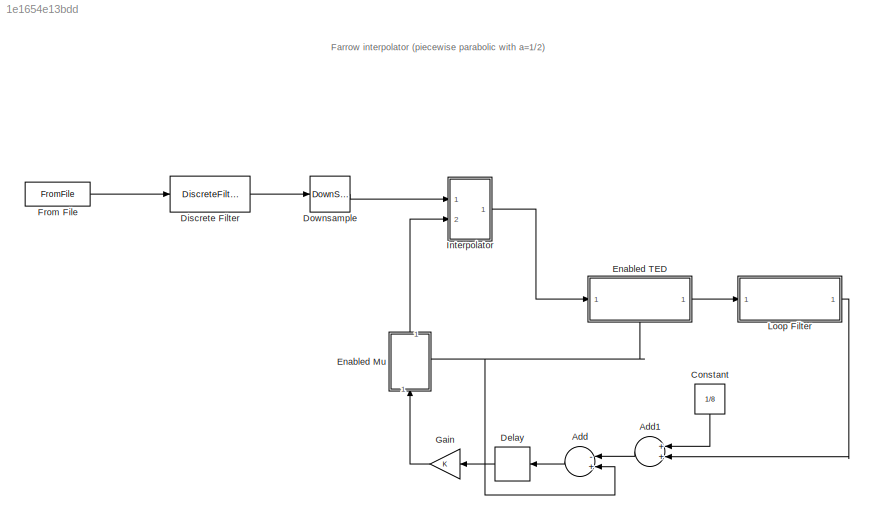
MODEL slx_1e1654e13bdd
KIND model
CONFIG AbsTol = auto
CONFIG FixedStep = auto
CONFIG MaxStep = auto
CONFIG MinStep = auto
CONFIG RelTol = 1e-3
CONFIG SampleTimeConstraint = Unconstrained
CONFIG Solver = VariableStepAuto
CONFIG SolverMode = Auto
CONFIG SolverName = VariableStepAuto
CONFIG StartTime = 0.0
CONFIG StopTime = (12+256+8+602)*8
BLOCK [Sum] Add
  InputSameDT = off
  Inputs = -+
  OutDataTypeStr = Inherit: Inherit via internal rule
  Ports = [2, 1]
  SaturateOnIntegerOverflow = off
BLOCK [Sum] Add1
  InputSameDT = off
  OutDataTypeStr = Inherit: Inherit via internal rule
  Ports = [2, 1]
  SaturateOnIntegerOverflow = off
BLOCK [Constant] Constant
  Value = 1/8
BLOCK [Delay] Delay
  DelayLength = 1
  InputPortMap = u0
  Ports = [1, 1]
BLOCK [DiscreteFilter] Discrete Filter
  Denominator = [1]
  InputPortMap = u0
  Numerator = rcosine(1,8,'fir/sqrt',0.5,6)
  Ports = [1, 1]
BLOCK [DownSample] Downsample
  N = 8/2
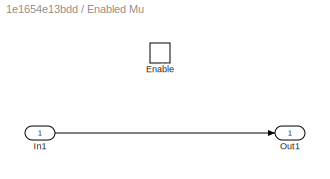
BLOCK [SubSystem] Enabled Mu
  Ports = [1, 1, 1]
  RequestExecContextInheritance = off
  TreatAsAtomicUnit = on
  Variant = off
BLOCK [EnablePort] Enabled Mu/Enable
  Ports = []
BLOCK [Inport] Enabled Mu/In1
  IconDisplay = Port number
BLOCK [Outport] Enabled Mu/Out1
  IconDisplay = Port number
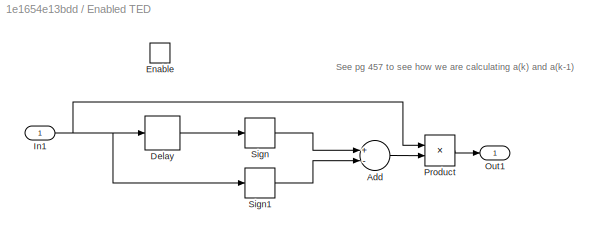
BLOCK [SubSystem] Enabled TED
  Ports = [1, 1, 1]
  RequestExecContextInheritance = off
  TreatAsAtomicUnit = on
  Variant = off
BLOCK [Sum] Enabled TED/Add
  InputSameDT = off
  Inputs = +-
  OutDataTypeStr = Inherit: Inherit via internal rule
  Ports = [2, 1]
  SaturateOnIntegerOverflow = off
BLOCK [Delay] Enabled TED/Delay
  DelayLength = 1
  InputPortMap = u0
  Ports = [1, 1]
BLOCK [EnablePort] Enabled TED/Enable
  Ports = []
  StatesWhenEnabling = reset
BLOCK [Inport] Enabled TED/In1
  IconDisplay = Port number
BLOCK [Outport] Enabled TED/Out1
  IconDisplay = Port number
BLOCK [Product] Enabled TED/Product
  InputSameDT = off
  OutDataTypeStr = Inherit: Inherit via internal rule
  Ports = [2, 1]
  RndMeth = Floor
  SaturateOnIntegerOverflow = off
BLOCK [Signum] Enabled TED/Sign
BLOCK [Signum] Enabled TED/Sign1
BLOCK [FromFile] From File
  FileName = bbtrdata.mat
  SampleTime = 1
BLOCK [Gain] Gain
  OutDataTypeStr = Inherit: Inherit via internal rule
  ParamDataTypeStr = Inherit: Inherit via internal rule
  SaturateOnIntegerOverflow = off
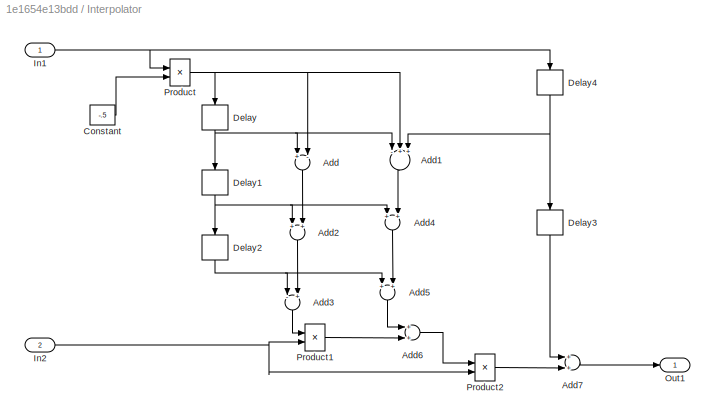
BLOCK [SubSystem] Interpolator 
  Ports = [2, 1]
  RequestExecContextInheritance = off
  Variant = off
BLOCK [Sum] Interpolator /Add
  InputSameDT = off
  Inputs = +-
  OutDataTypeStr = Inherit: Inherit via internal rule
  Ports = [2, 1]
  SaturateOnIntegerOverflow = off
BLOCK [Sum] Interpolator /Add1
  InputSameDT = off
  Inputs = -++
  OutDataTypeStr = Inherit: Inherit via internal rule
  Ports = [3, 1]
  SaturateOnIntegerOverflow = off
BLOCK [Sum] Interpolator /Add2
  InputSameDT = off
  OutDataTypeStr = Inherit: Inherit via internal rule
  Ports = [2, 1]
  SaturateOnIntegerOverflow = off
BLOCK [Sum] Interpolator /Add3
  InputSameDT = off
  Inputs = -+
  OutDataTypeStr = Inherit: Inherit via internal rule
  Ports = [2, 1]
  SaturateOnIntegerOverflow = off
BLOCK [Sum] Interpolator /Add4
  InputSameDT = off
  OutDataTypeStr = Inherit: Inherit via internal rule
  Ports = [2, 1]
  SaturateOnIntegerOverflow = off
BLOCK [Sum] Interpolator /Add5
  InputSameDT = off
  OutDataTypeStr = Inherit: Inherit via internal rule
  Ports = [2, 1]
  SaturateOnIntegerOverflow = off
BLOCK [Sum] Interpolator /Add6
  InputSameDT = off
  OutDataTypeStr = Inherit: Inherit via internal rule
  Ports = [2, 1]
  SaturateOnIntegerOverflow = off
BLOCK [Sum] Interpolator /Add7
  InputSameDT = off
  OutDataTypeStr = Inherit: Inherit via internal rule
  Ports = [2, 1]
  SaturateOnIntegerOverflow = off
BLOCK [Constant] Interpolator /Constant
  Value = -.5
BLOCK [Delay] Interpolator /Delay
  DelayLength = 1
  InputPortMap = u0
  InputProcessing = Columns as channels (frame based)
  Ports = [1, 1]
BLOCK [Delay] Interpolator /Delay1
  DelayLength = 1
  InputPortMap = u0
  InputProcessing = Columns as channels (frame based)
  Ports = [1, 1]
BLOCK [Delay] Interpolator /Delay2
  DelayLength = 1
  InputPortMap = u0
  InputProcessing = Columns as channels (frame based)
  Ports = [1, 1]
BLOCK [Delay] Interpolator /Delay3
  DelayLength = 1
  InputPortMap = u0
  InputProcessing = Columns as channels (frame based)
  Ports = [1, 1]
BLOCK [Delay] Interpolator /Delay4
  DelayLength = 1
  InputPortMap = u0
  InputProcessing = Columns as channels (frame based)
  Ports = [1, 1]
BLOCK [Inport] Interpolator /In1
  IconDisplay = Port number
BLOCK [Inport] Interpolator /In2
  IconDisplay = Port number
  Port = 2
BLOCK [Outport] Interpolator /Out1
  IconDisplay = Port number
BLOCK [Product] Interpolator /Product
  InputSameDT = off
  OutDataTypeStr = Inherit: Inherit via internal rule
  Ports = [2, 1]
  RndMeth = Floor
  SaturateOnIntegerOverflow = off
BLOCK [Product] Interpolator /Product1
  InputSameDT = off
  OutDataTypeStr = Inherit: Inherit via internal rule
  Ports = [2, 1]
  RndMeth = Floor
  SaturateOnIntegerOverflow = off
BLOCK [Product] Interpolator /Product2
  InputSameDT = off
  OutDataTypeStr = Inherit: Inherit via internal rule
  Ports = [2, 1]
  RndMeth = Floor
  SaturateOnIntegerOverflow = off
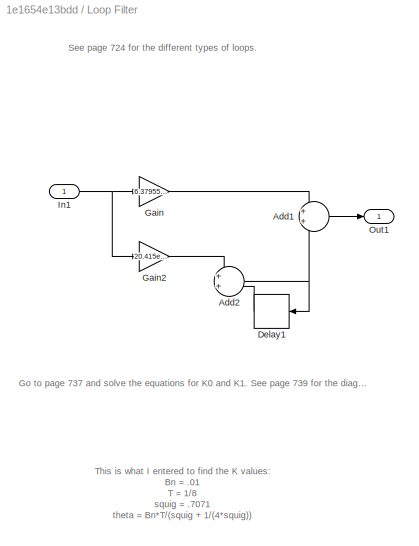
BLOCK [SubSystem] Loop Filter 
  Ports = [1, 1]
  RequestExecContextInheritance = off
  Variant = off
BLOCK [Sum] Loop Filter /Add1
  IconShape = round
  InputSameDT = off
  OutDataTypeStr = Inherit: Inherit via internal rule
  Ports = [2, 1]
  SaturateOnIntegerOverflow = off
BLOCK [Sum] Loop Filter /Add2
  IconShape = round
  InputSameDT = off
  OutDataTypeStr = Inherit: Inherit via internal rule
  Ports = [2, 1]
  SaturateOnIntegerOverflow = off
BLOCK [Delay] Loop Filter /Delay1
  DelayLength = 1
  InputPortMap = u0
  Ports = [1, 1]
BLOCK [Gain] Loop Filter /Gain
  Gain = 6.37955e-3
  OutDataTypeStr = Inherit: Inherit via internal rule
  ParamDataTypeStr = Inherit: Inherit via internal rule
  SaturateOnIntegerOverflow = off
BLOCK [Gain] Loop Filter /Gain2
  Gain = 20.415e-6
  OutDataTypeStr = Inherit: Inherit via internal rule
  ParamDataTypeStr = Inherit: Inherit via internal rule
  SaturateOnIntegerOverflow = off
BLOCK [Inport] Loop Filter /In1
  IconDisplay = Port number
BLOCK [Outport] Loop Filter /Out1
  IconDisplay = Port number
ANNOTATION (root): Farrow interpolator (piecewise parabolic with a=1/2 )
ANNOTATION Enabled TED: See pg 457 to see how we are calculating a(k) and a(k-1)
ANNOTATION Loop Filter : Go to page 737 and solve the equations for K0 and K1. See page 739 for the diagram
ANNOTATION Loop Filter : See page 724 for the different types of loops.
ANNOTATION Loop Filter : This is what I entered to find the K values: Bn = .01 T = 1/8 squig = .7071 theta = Bn*T/(squig + 1/(4*squig))
LINE Add1:1 -> Add:1
LINE Add:1 -> Delay:1
LINE Constant:1 -> Add1:1
NET Delay:1 -> Add:2, Enabled Mu:enable, Enabled TED:enable, Gain:1
LINE Discrete Filter:1 -> Downsample:1
LINE Downsample:1 -> Interpolator :1
LINE Enabled Mu/In1:1 -> Enabled Mu/Out1:1
LINE Enabled Mu:1 -> Interpolator :2
LINE Enabled TED/Add:1 -> Enabled TED/Product:2
LINE Enabled TED/Delay:1 -> Enabled TED/Sign:1
NET Enabled TED/In1:1 -> Enabled TED/Delay:1, Enabled TED/Product:1, Enabled TED/Sign1:1
LINE Enabled TED/Product:1 -> Enabled TED/Out1:1
LINE Enabled TED/Sign1:1 -> Enabled TED/Add:2
LINE Enabled TED/Sign:1 -> Enabled TED/Add:1
LINE Enabled TED:1 -> Loop Filter :1
LINE From File:1 -> Discrete Filter:1
LINE Gain:1 -> Enabled Mu:1
LINE Interpolator /Add1:1 -> Interpolator /Add4:2
LINE Interpolator /Add2:1 -> Interpolator /Add3:2
LINE Interpolator /Add3:1 -> Interpolator /Product1:1
LINE Interpolator /Add4:1 -> Interpolator /Add5:2
LINE Interpolator /Add5:1 -> Interpolator /Add6:1
LINE Interpolator /Add6:1 -> Interpolator /Product2:1
LINE Interpolator /Add7:1 -> Interpolator /Out1:1
LINE Interpolator /Add:1 -> Interpolator /Add2:2
LINE Interpolator /Constant:1 -> Interpolator /Product:2
NET Interpolator /Delay1:1 -> Interpolator /Add2:1, Interpolator /Add4:1, Interpolator /Delay2:1
NET Interpolator /Delay2:1 -> Interpolator /Add3:1, Interpolator /Add5:1
LINE Interpolator /Delay3:1 -> Interpolator /Add7:1
NET Interpolator /Delay4:1 -> Interpolator /Add1:3, Interpolator /Delay3:1
NET Interpolator /Delay:1 -> Interpolator /Add1:1, Interpolator /Add:1, Interpolator /Delay1:1
NET Interpolator /In1:1 -> Interpolator /Delay4:1, Interpolator /Product:1
NET Interpolator /In2:1 -> Interpolator /Product1:2, Interpolator /Product2:2
LINE Interpolator /Product1:1 -> Interpolator /Add6:2
LINE Interpolator /Product2:1 -> Interpolator /Add7:2
NET Interpolator /Product:1 -> Interpolator /Add1:2, Interpolator /Add:2, Interpolator /Delay:1
LINE Interpolator :1 -> Enabled TED:1
LINE Loop Filter /Add1:1 -> Loop Filter /Out1:1
NET Loop Filter /Add2:1 -> Loop Filter /Add1:2, Loop Filter /Delay1:1
LINE Loop Filter /Delay1:1 -> Loop Filter /Add2:2
LINE Loop Filter /Gain2:1 -> Loop Filter /Add2:1
LINE Loop Filter /Gain:1 -> Loop Filter /Add1:1
NET Loop Filter /In1:1 -> Loop Filter /Gain2:1, Loop Filter /Gain:1
LINE Loop Filter :1 -> Add1:2
note: NET lines group one-source signal fan-out (src -> all destinations, sorted); 1:1 wires keep LINE
